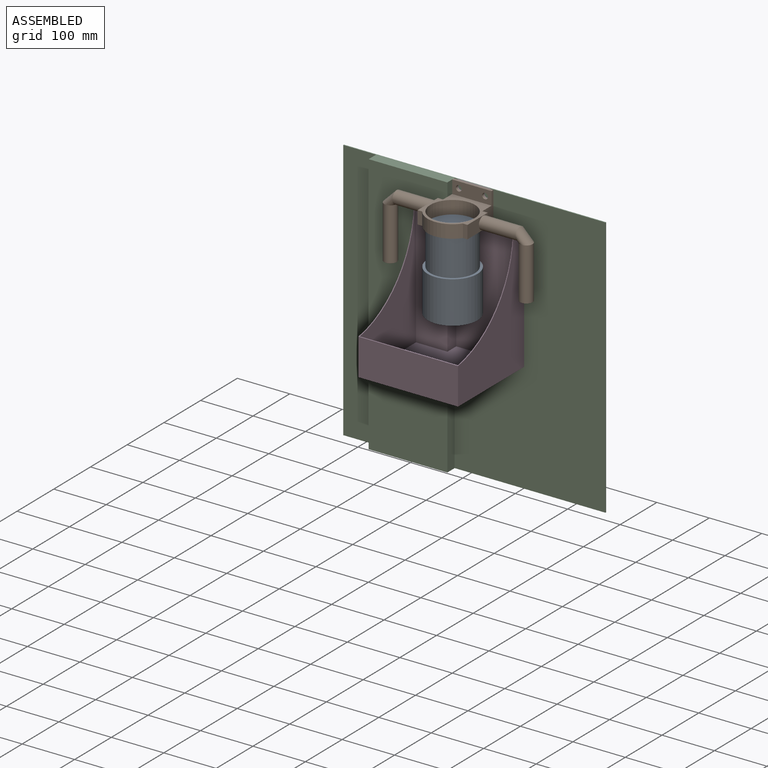
[diagram: assembled view]
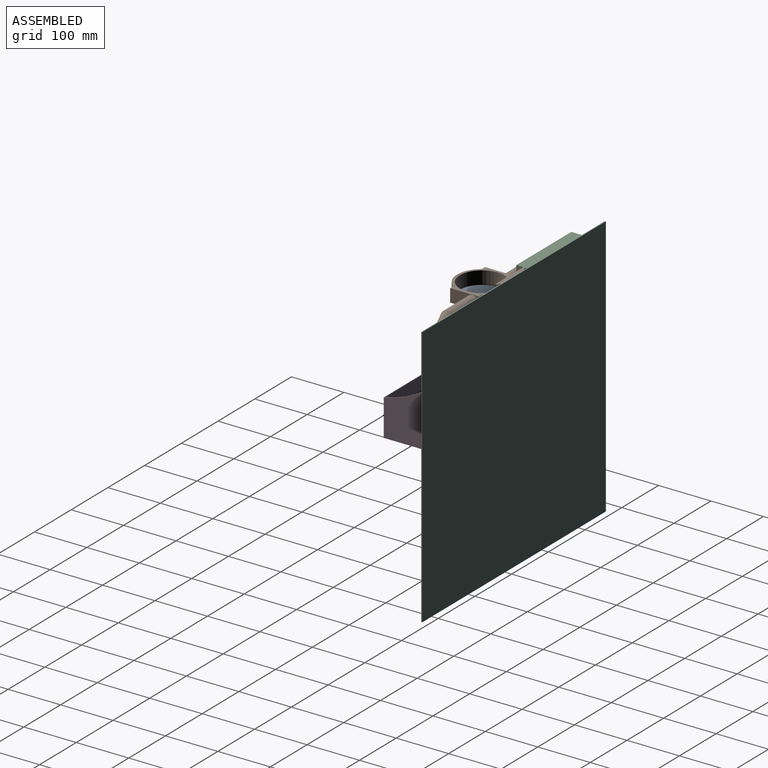
[diagram: assembled view, second angle]
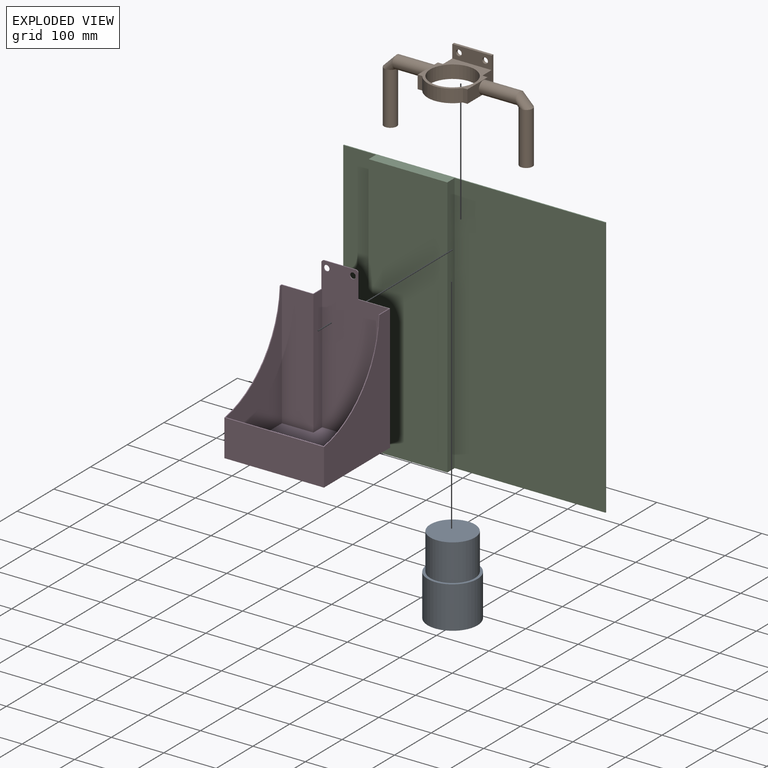
[diagram: exploded view]
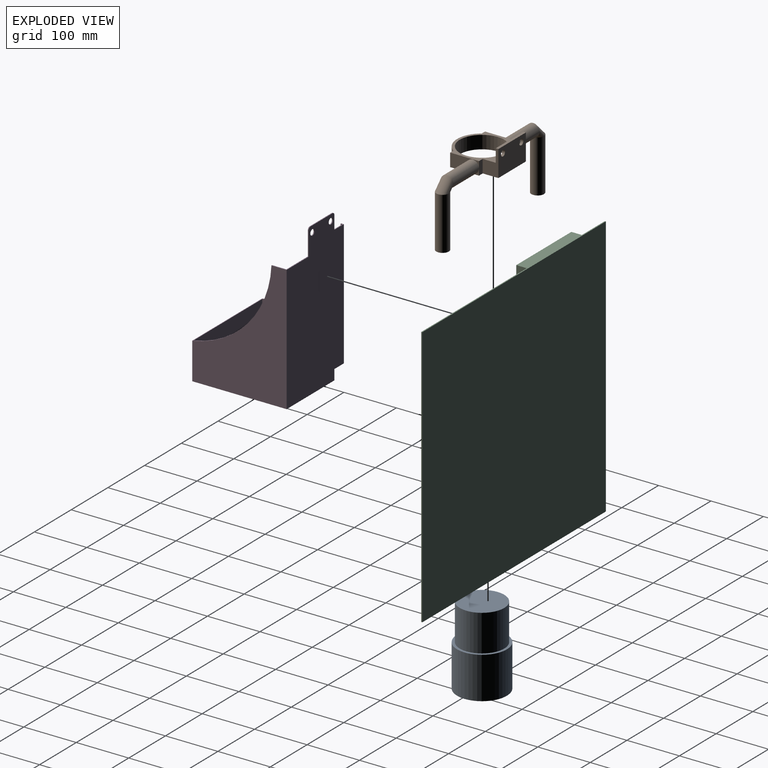
[diagram: exploded view, second angle]
ASSEMBLY  parts=4 mates=3
PART A: 7 faces, bbox 95x95x160 mm
  f0: cylinder r=42.5mm len=85mm, axis (0,0,-1), area 18692.5mm2, adj f1,f4
  f1: plane 85x85mm, normal (0,0,1), area 5674.5mm2, adj f0
  f2: cylinder r=47.5mm len=95mm, axis (0,0,1), area 23876.1mm2, adj f3,f4
  f3: plane 95x95mm, normal (0,0,-1), area 6774.1mm2, adj f2,f5
  f4: plane 95x95mm, normal (0,0,1), area 1413.7mm2, adj f0,f2
  f5: cylinder r=10mm len=20mm, axis (0,0,1), area 628.3mm2, adj f3,f6
  f6: plane 20x20mm, normal (0,0,-1), area 314.2mm2, adj f5
PART B: 25 faces, bbox 287x105x149.5 mm
  f0: cylinder r=12mm len=100mm, axis (0,0,1), area 7539.8mm2, adj f1,f21
  f1: plane 24x24mm, normal (0,0,-1), area 452.4mm2, adj f0
  f2: plane 50x30mm, normal (1,0,0), area 875mm2, adj f3,f11,f13,f14,f15,f16
  f3: plane 75x50mm, normal (0,1,0), area 3559.9mm2, adj f2,f4,f14,f16,f17,f18
  f4: plane 50x30mm, normal (-1,0,0), area 875mm2, adj f3,f5,f13,f14,f15,f16
  f5: plane 25x10mm, normal (0,1,0), area 250mm2, adj f4,f6,f13,f14
  f6: plane 55x25mm, normal (-1,0,0), area 922.6mm2, adj f5,f7,f13,f14,f19
  f7: plane 25x8.77mm, normal (0,-1,0), area 219.3mm2, adj f6,f8,f13,f14
  f8: cylinder r=47.5mm len=77.46mm, axis (0,0,-1), area 2264.2mm2, adj f7,f9,f13,f14
  f9: plane 25x8.77mm, normal (0,-1,0), area 219.3mm2, adj f8,f10,f13,f14
  f10: plane 55x25mm, normal (1,0,0), area 922.6mm2, adj f9,f11,f13,f14,f20
  f11: plane 25x10mm, normal (0,1,0), area 250mm2, adj f2,f10,f13,f14
  f12: cylinder r=42.5mm len=85mm, axis (0,0,-1), area 6675.9mm2, adj f13,f14
  f13: plane 100x95mm, normal (0,0,1), area 2511.4mm2, adj f2,f4,f5,f6,f7,f8,f9,f10
  f14: plane 105x95mm, normal (0,0,-1), area 2886.4mm2, adj f2,f3,f4,f5,f6,f7,f8,f9
  f15: plane 75x25mm, normal (0,-1,0), area 1684.9mm2, adj f2,f4,f13,f16,f17,f18
  f16: plane 75x5mm, normal (0,0,1), area 375mm2, adj f2,f3,f4,f15
  f17: cylinder r=5.5mm len=11mm, axis (0,-1,0), area 172.8mm2, adj f3,f15
  f18: cylinder r=5.5mm len=11mm, axis (0,-1,0), area 172.8mm2, adj f3,f15
  f19: cylinder r=12mm len=70mm, axis (1,0,0), area 5277.9mm2, adj f6,f21
  f20: cylinder r=12mm len=70mm, axis (-1,0,0), area 5277.9mm2, adj f10,f22
  f21: torus R=12mm, axis (0,-1,0), area 1421.2mm2, adj f0,f19
  f22: torus R=12mm, axis (0,-1,0), area 1421.2mm2, adj f20,f23
  f23: cylinder r=12mm len=100mm, axis (0,0,1), area 7539.8mm2, adj f22,f24
  f24: plane 24x24mm, normal (0,0,-1), area 452.4mm2, adj f23
PART C: 10 faces, bbox 500x22x500 mm
  f0: plane 500x287.5mm, normal (0,-1,0), area 143750mm2, adj f1,f2,f4,f8
  f1: plane 500x2mm, normal (1,0,0), area 1000mm2, adj f0,f2,f4,f5
  f2: plane 500x22mm, normal (0,0,1), area 4000mm2, adj f0,f1,f3,f5,f6,f7,f8,f9
  f3: plane 500x2mm, normal (-1,0,0), area 1000mm2, adj f2,f4,f5,f6
  f4: plane 500x22mm, normal (0,0,-1), area 4000mm2, adj f0,f1,f3,f5,f6,f7,f8,f9
  f5: plane 500x500mm, normal (0,1,0), area 250000mm2, adj f1,f2,f3,f4
  f6: plane 500x62.5mm, normal (0,-1,0), area 31250mm2, adj f2,f3,f4,f7
  f7: plane 500x20mm, normal (-1,0,0), area 10000mm2, adj f2,f4,f6,f9
  f8: plane 500x20mm, normal (1,0,0), area 10000mm2, adj f0,f2,f4,f9
  f9: plane 500x150mm, normal (0,-1,0), area 75000mm2, adj f2,f4,f7,f8
PART D: 24 faces, bbox 190x180x290 mm
  f0: plane 60x29mm, normal (0,0,1), area 139.8mm2, adj f2,f4,f8,f11,f15,f17
  f1: plane 61.6x27.4mm, normal (0,0,1), area 139.8mm2, adj f2,f5,f6,f7,f11,f12,f13,f14
  f2: cylinder r=180mm len=190mm, axis (-1,0,0), area 1090.6mm2, adj f0,f1,f3,f7,f8,f10,f14,f15
  f3: plane 190x70mm, normal (0,-1,0), area 13300mm2, adj f2,f7,f8,f9
  f4: plane 290x130mm, normal (0,1,0), area 34499.2mm2, adj f0,f5,f8,f9,f17,f18,f19,f20
  f5: plane 285x24mm, normal (-1,0,0), area 5832mm2, adj f1,f4,f6,f9,f11,f19
  f6: plane 240x60mm, normal (0,1,0), area 14400mm2, adj f1,f5,f7,f9
  f7: plane 240x156mm, normal (-1,0,0), area 18321.1mm2, adj f1,f2,f3,f6,f9
  f8: plane 240x180mm, normal (1,0,0), area 24081.1mm2, adj f0,f2,f3,f4,f9
  f9: plane 190x180mm, normal (0,0,-1), area 32583.3mm2, adj f3,f4,f5,f6,f7,f8,f23
  f10: plane 186.8x68.67mm, normal (0,1,0), area 12827mm2, adj f2,f14,f15,f16
  f11: plane 288.4x128.4mm, normal (0,-1,0), area 33528.3mm2, adj f0,f1,f5,f12,f15,f16,f17,f18
  f12: plane 238.4x24mm, normal (1,0,0), area 5721.6mm2, adj f1,f11,f13,f16
  f13: plane 238.4x60mm, normal (0,-1,0), area 14304mm2, adj f1,f12,f14,f16
  f14: plane 238.4x152.8mm, normal (1,0,0), area 17580.4mm2, adj f1,f2,f10,f13,f16
  f15: plane 238.4x176.8mm, normal (-1,0,0), area 23302mm2, adj f0,f2,f10,f11,f16
  f16: plane 186.8x176.8mm, normal (0,0,1), area 31409.5mm2, adj f10,f11,f12,f13,f14,f15,f23
  f17: plane 45x1.6mm, normal (1,0,0), area 72mm2, adj f0,f4,f11,f20
  f18: plane 60x1.6mm, normal (0,0,1), area 96mm2, adj f4,f11,f19,f20
  f19: cylinder r=5mm len=5mm, axis (0,1,0), area 12.6mm2, adj f4,f5,f11,f18
  f20: cylinder r=5mm len=5mm, axis (0,-1,0), area 12.6mm2, adj f4,f11,f17,f18
  f21: cylinder r=5.5mm len=11mm, axis (0,-1,0), area 55.3mm2, adj f4,f11
  f22: cylinder r=5.5mm len=11mm, axis (0,-1,0), area 55.3mm2, adj f4,f11
  f23: cylinder r=7.5mm len=15mm, axis (0,0,1), area 75.4mm2, adj f9,f16
PLACE A t=(-90.49,-269.68,323.93)mm
PLACE B t=(-90.49,-269.68,393.93)mm
PLACE C t=(-90.49,-210.58,193.93)mm
PLACE D t=(-90.49,-210.58,153.93)mm
MATE fastened B.f3 <-> D.f11  axis (0,1,0) through (-90.49,-212.18,443.93)mm
MATE fastened C.f0 <-> D.f4  axis (0,-1,0) through (-127.99,-210.58,443.93)mm
MATE fastened A.f0 <-> B.f12  axis (0,0,1) through (-90.49,-269.68,393.93)mm
